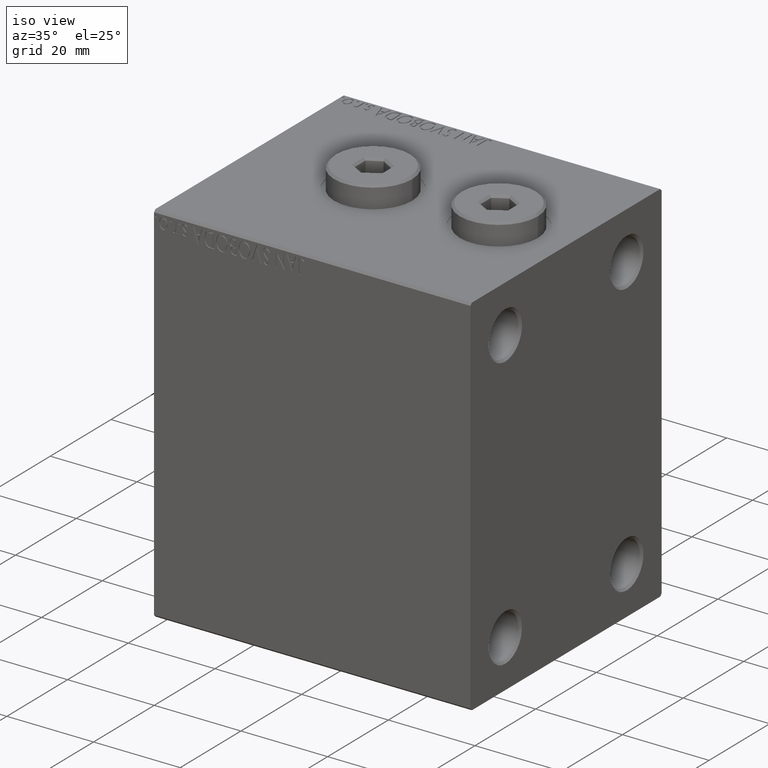
[diagram: clean part render]
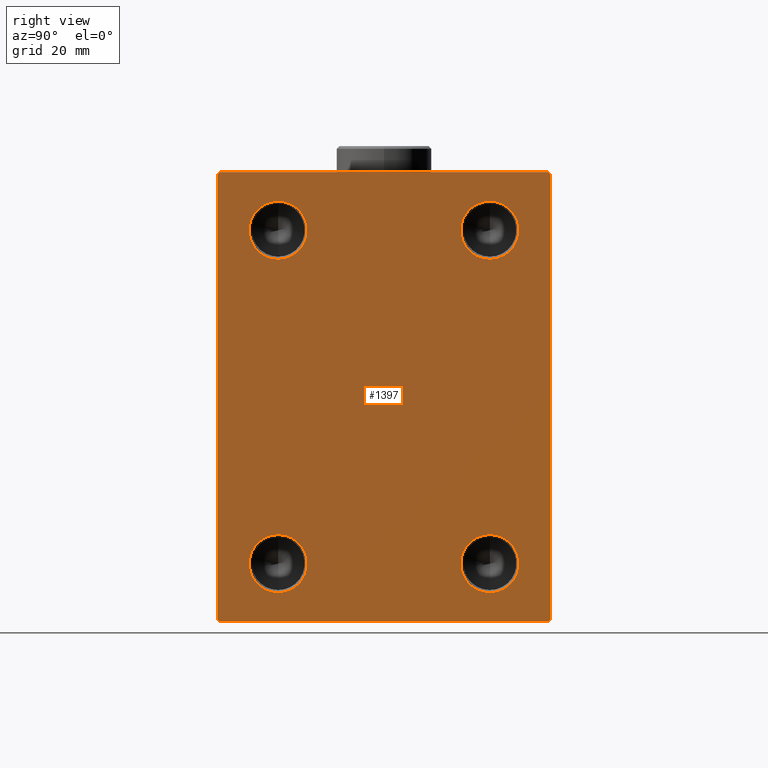
[diagram: tour spotlight — one face highlighted and labeled with its STEP entity id]
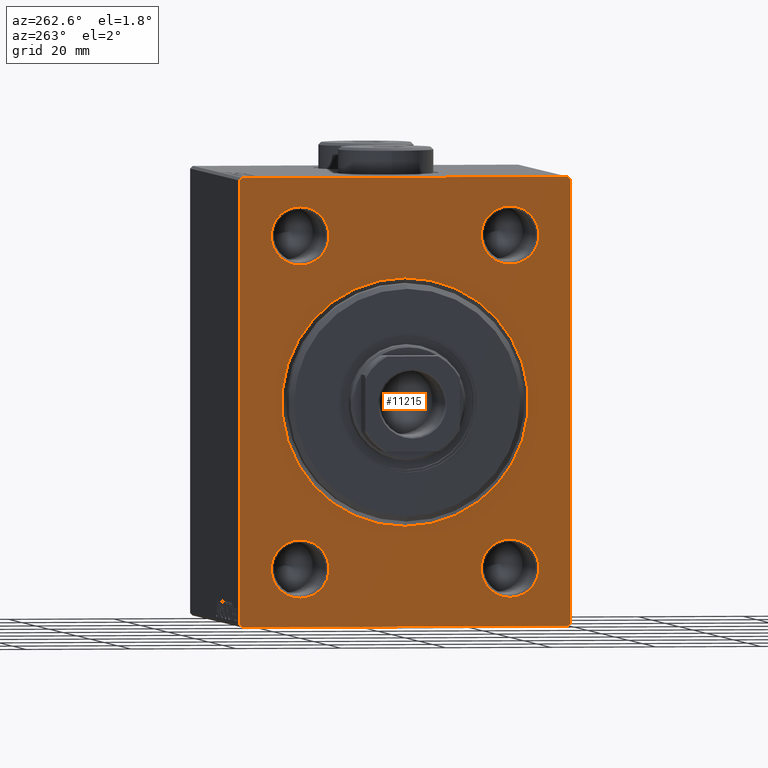
[diagram: tour spotlight — one face highlighted and labeled with its STEP entity id]
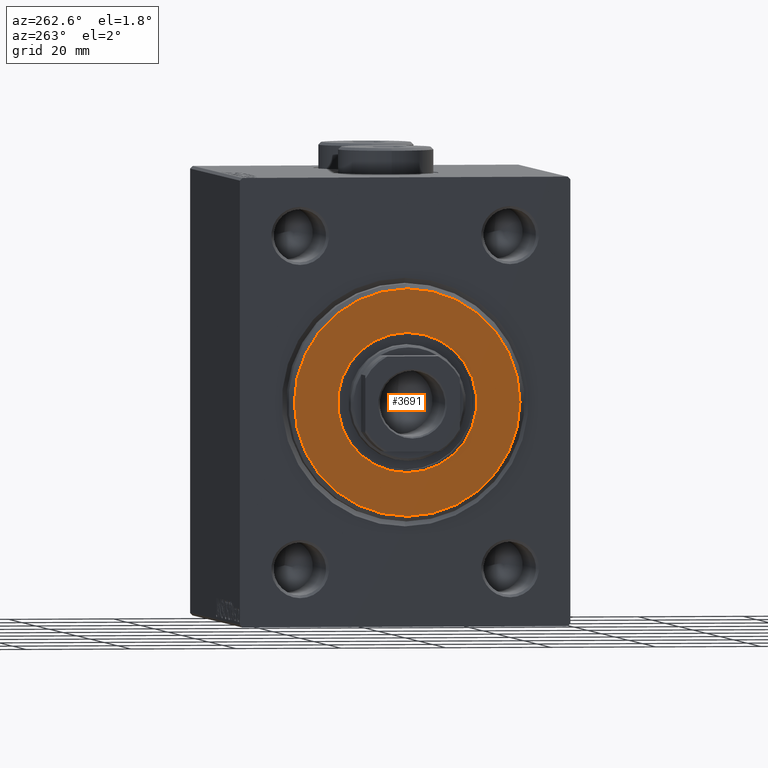
[diagram: tour spotlight — one face highlighted and labeled with its STEP entity id]
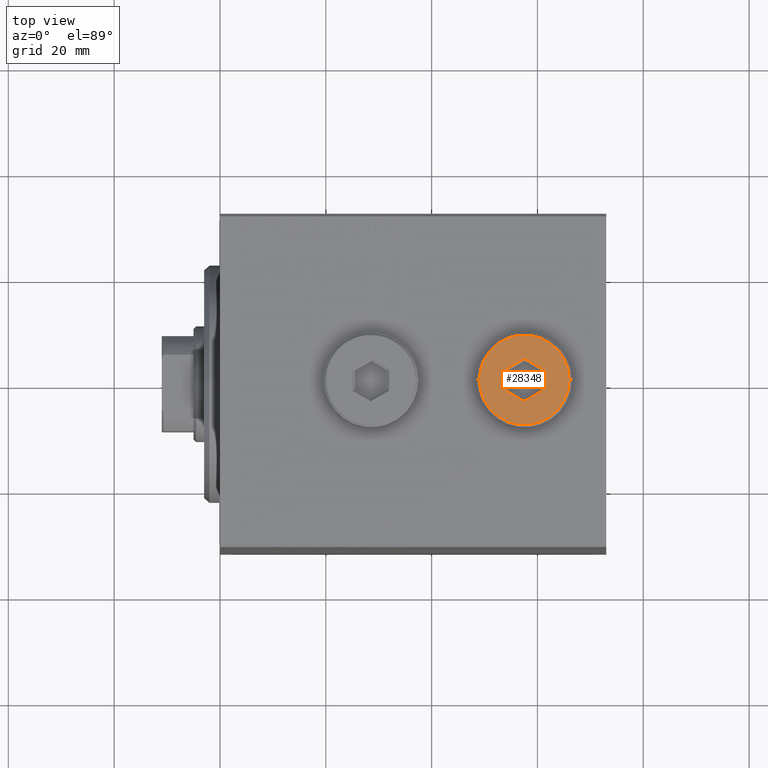
[diagram: tour spotlight — one face highlighted and labeled with its STEP entity id]
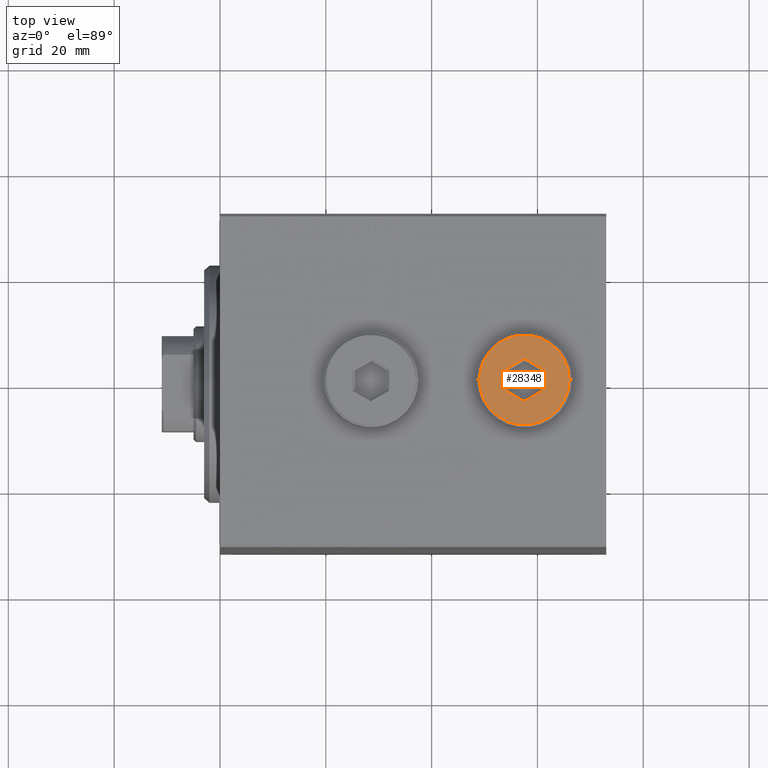
[diagram: tour spotlight — one face highlighted and labeled with its STEP entity id]
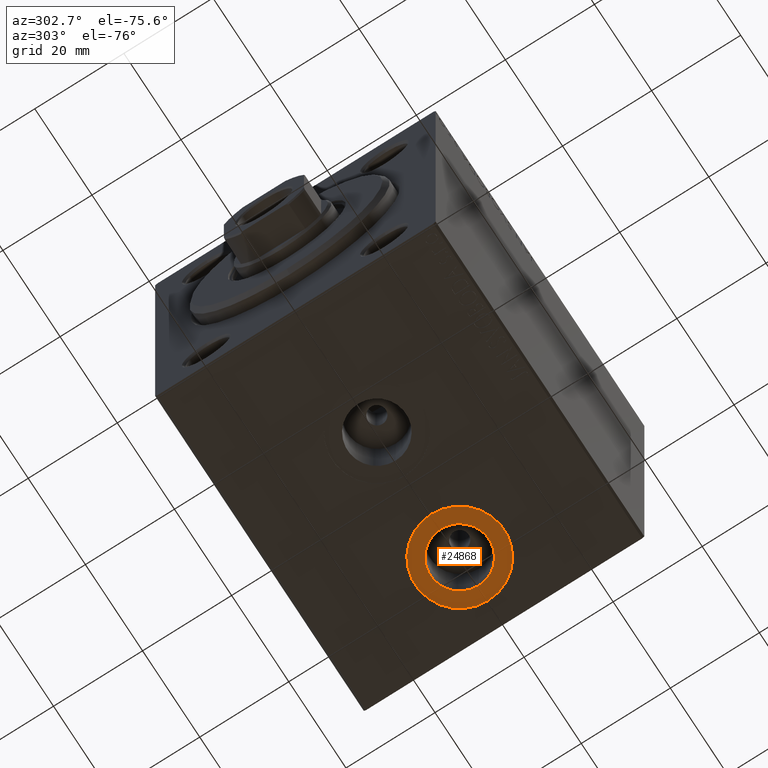
[diagram: tour spotlight — one face highlighted and labeled with its STEP entity id]
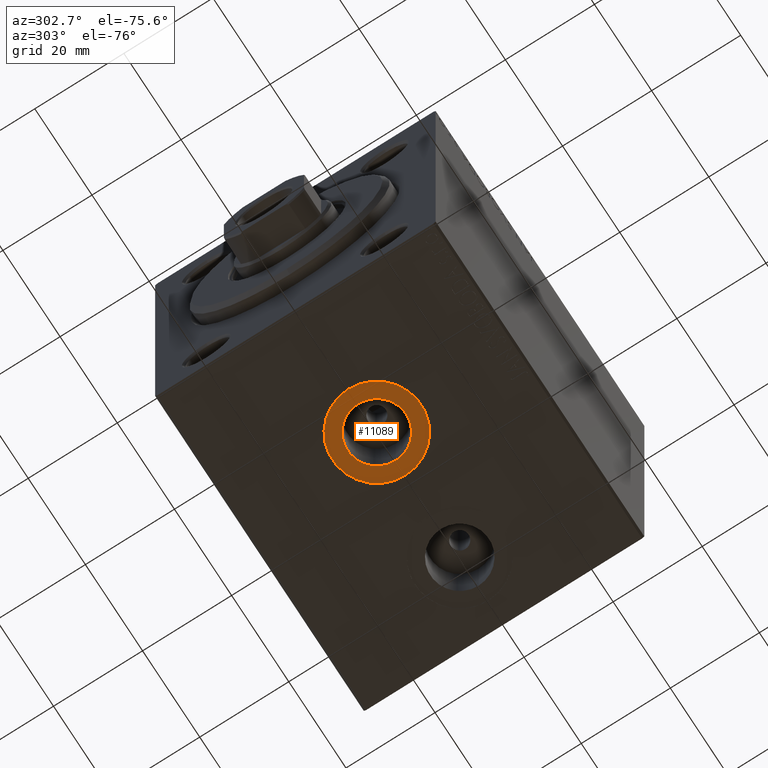
[diagram: tour spotlight — one face highlighted and labeled with its STEP entity id]
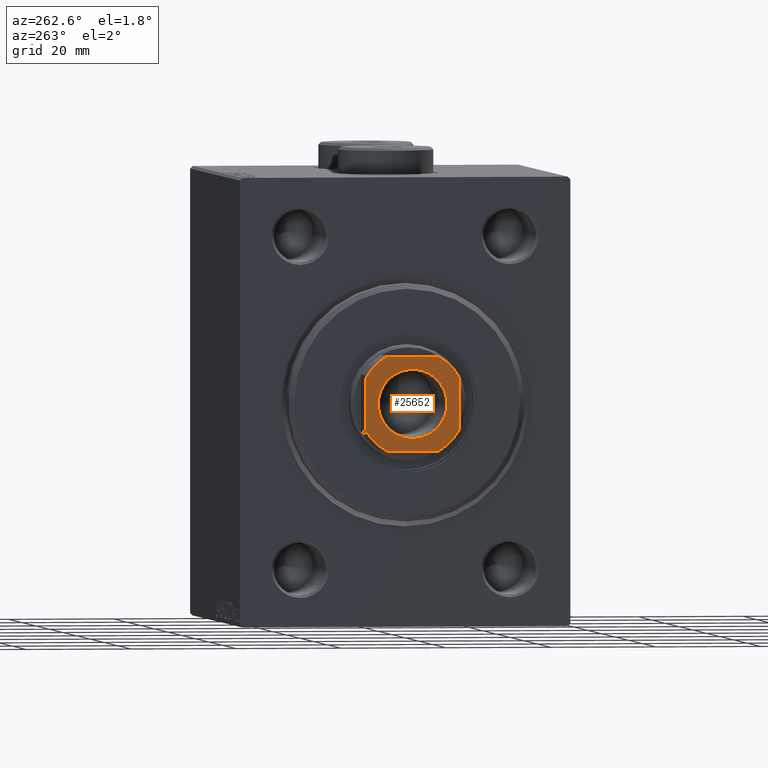
[diagram: tour spotlight — one face highlighted and labeled with its STEP entity id]
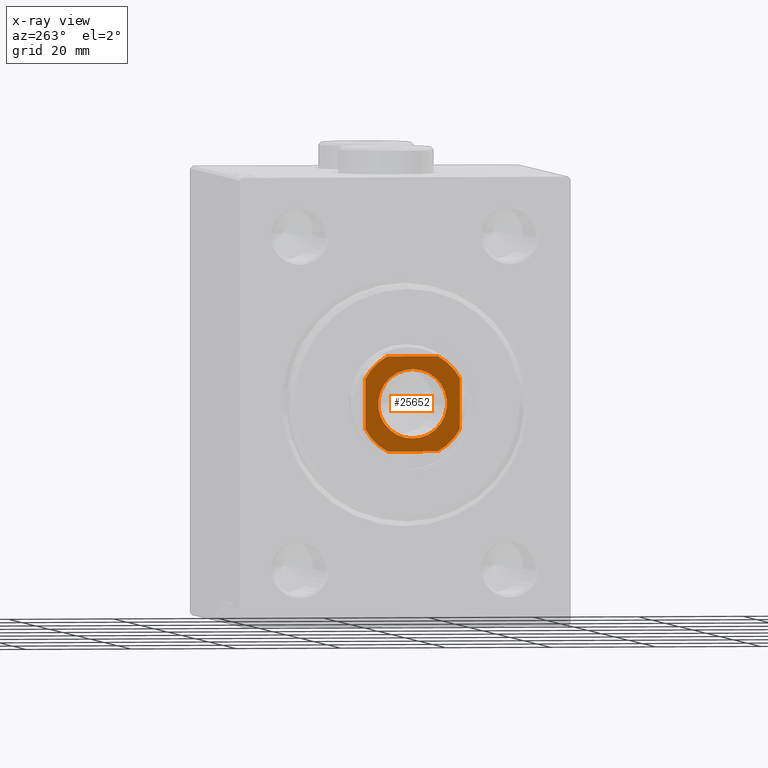
[diagram: x-ray of the same camera — body ghosted, this tour face saturated]
A machine part: a face-by-face anatomy tour. The part has 933 B-rep faces; the first image is the clean iso view, then the 8 largest visible faces are spotlighted one at a time (largest first), each with its STEP entity span.

Face 1 — right view, entity #1397. In plain terms, the highlighted planar face has unit normal (1, 0, 0).
Definition (entity closure, byte-faithful):
#661 = CARTESIAN_POINT ( 'NONE',  ( 73.00000000000000000, -31.00000000000000000, 42.49999999999998579 ) ) ;
#853 = VERTEX_POINT ( 'NONE', #21085 ) ;
#1088 = DIRECTION ( 'NONE',  ( 0.000000000000000000, 0.000000000000000000, -1.000000000000000000 ) ) ;
#1397 = ADVANCED_FACE ( 'NONE', ( #15728, #19633, #19855, #5620, #13177 ), #33646, .T. ) ;
#1671 = VECTOR ( 'NONE', #24778, 1000.000000000000000 ) ;
#2185 = CARTESIAN_POINT ( 'NONE',  ( 73.00000000000000000, 0.000000000000000000, 0.000000000000000000 ) ) ;
#2287 = AXIS2_PLACEMENT_3D ( 'NONE', #39627, #8155, #22188 ) ;
#2638 = DIRECTION ( 'NONE',  ( 1.000000000000000000, 0.000000000000000000, 0.000000000000000000 ) ) ;
#2842 = CIRCLE ( 'NONE', #26336, 5.500000000000005329 ) ;
#2970 = LINE ( 'NONE', #38556, #1671 ) ;
#3181 = CARTESIAN_POINT ( 'NONE',  ( 73.00000000000000000, 19.99999999999999645, -25.99999999999999289 ) ) ;
#3385 = CARTESIAN_POINT ( 'NONE',  ( 73.00000000000000000, -31.50000000000000000, -42.00000000000000000 ) ) ;
#3513 = VECTOR ( 'NONE', #24123, 1000.000000000000114 ) ;
#3574 = ORIENTED_EDGE ( 'NONE', *, *, #45396, .F. ) ;
#3575 = CARTESIAN_POINT ( 'NONE',  ( 73.00000000000000000, -31.50000000000000000, -42.50000000000000711 ) ) ;
#3648 = EDGE_LOOP ( 'NONE', ( #39187, #21361, #44512, #26141, #8186, #27920, #43336, #11939 ) ) ;
#3658 = CARTESIAN_POINT ( 'NONE',  ( 73.00000000000000000, -36.75000000000022737, -36.74999999999971578 ) ) ;
#4088 = CARTESIAN_POINT ( 'NONE',  ( 73.00000000000000000, 31.50000000000000000, 41.99999999999999289 ) ) ;
#4105 = EDGE_CURVE ( 'NONE', #20127, #853, #38049, .T. ) ;
#4116 = EDGE_LOOP ( 'NONE', ( #33742, #8873 ) ) ;
#4854 = DIRECTION ( 'NONE',  ( 0.000000000000000000, 0.000000000000000000, -1.000000000000000000 ) ) ;
#5240 = VERTEX_POINT ( 'NONE', #12651 ) ;
#5613 = VERTEX_POINT ( 'NONE', #6166 ) ;
#5620 = FACE_BOUND ( 'NONE', #25158, .T. ) ;
#5937 = EDGE_CURVE ( 'NONE', #16228, #41867, #10005, .T. ) ;
#6075 = VECTOR ( 'NONE', #17213, 1000.000000000000114 ) ;
#6086 = EDGE_CURVE ( 'NONE', #35880, #10339, #20963, .T. ) ;
#6166 = CARTESIAN_POINT ( 'NONE',  ( 73.00000000000000000, -20.00000000000000355, 25.99999999999999289 ) ) ;
#6562 = VERTEX_POINT ( 'NONE', #3181 ) ;
#6586 = DIRECTION ( 'NONE',  ( 1.000000000000000000, -0.000000000000000000, -0.000000000000000000 ) ) ;
#7754 = CARTESIAN_POINT ( 'NONE',  ( 73.00000000000000000, 31.00000000000000000, 42.49999999999999289 ) ) ;
#8155 = DIRECTION ( 'NONE',  ( 1.000000000000000000, -0.000000000000000000, -0.000000000000000000 ) ) ;
#8186 = ORIENTED_EDGE ( 'NONE', *, *, #4105, .T. ) ;
#8873 = ORIENTED_EDGE ( 'NONE', *, *, #16430, .F. ) ;
#9613 = CIRCLE ( 'NONE', #2287, 5.500000000000005329 ) ;
#9942 = DIRECTION ( 'NONE',  ( 0.000000000000000000, 0.000000000000000000, -1.000000000000000000 ) ) ;
#10005 = CIRCLE ( 'NONE', #35679, 5.500000000000005329 ) ;
#10339 = VERTEX_POINT ( 'NONE', #3385 ) ;
#10959 = ORIENTED_EDGE ( 'NONE', *, *, #41266, .F. ) ;
#11217 = DIRECTION ( 'NONE',  ( -0.000000000000000000, 0.7071067811865425767, -0.7071067811865525687 ) ) ;
#11323 = VECTOR ( 'NONE', #36474, 1000.000000000000114 ) ;
#11939 = ORIENTED_EDGE ( 'NONE', *, *, #26348, .T. ) ;
#12651 = CARTESIAN_POINT ( 'NONE',  ( 73.00000000000000000, 31.50000000000001421, -42.00000000000000711 ) ) ;
#12667 = AXIS2_PLACEMENT_3D ( 'NONE', #31633, #20856, #28207 ) ;
#12761 = AXIS2_PLACEMENT_3D ( 'NONE', #29962, #22836, #19150 ) ;
#13175 = CARTESIAN_POINT ( 'NONE',  ( 73.00000000000000000, 31.50000000000001421, -42.50000000000000711 ) ) ;
#13177 = FACE_OUTER_BOUND ( 'NONE', #3648, .T. ) ;
#13463 = EDGE_CURVE ( 'NONE', #37028, #35880, #41783, .T. ) ;
#13835 = DIRECTION ( 'NONE',  ( 1.000000000000000000, -0.000000000000000000, -0.000000000000000000 ) ) ;
#14877 = VECTOR ( 'NONE', #19631, 1000.000000000000000 ) ;
#15163 = EDGE_CURVE ( 'NONE', #40238, #6562, #2842, .T. ) ;
#15183 = DIRECTION ( 'NONE',  ( 0.000000000000000000, 0.000000000000000000, -1.000000000000000000 ) ) ;
#15728 = FACE_BOUND ( 'NONE', #37211, .T. ) ;
#16228 = VERTEX_POINT ( 'NONE', #26768 ) ;
#16430 = EDGE_CURVE ( 'NONE', #5613, #24072, #35152, .T. ) ;
#17213 = DIRECTION ( 'NONE',  ( -0.000000000000000000, -0.7071067811865474617, 0.7071067811865474617 ) ) ;
#17389 = DIRECTION ( 'NONE',  ( 0.000000000000000000, 0.000000000000000000, -1.000000000000000000 ) ) ;
#18174 = DIRECTION ( 'NONE',  ( 1.000000000000000000, -0.000000000000000000, -0.000000000000000000 ) ) ;
#18524 = DIRECTION ( 'NONE',  ( 1.000000000000000000, -0.000000000000000000, -0.000000000000000000 ) ) ;
#18641 = DIRECTION ( 'NONE',  ( 1.000000000000000000, -0.000000000000000000, -0.000000000000000000 ) ) ;
#19150 = DIRECTION ( 'NONE',  ( 0.000000000000000000, 0.000000000000000000, -1.000000000000000000 ) ) ;
#19346 = CARTESIAN_POINT ( 'NONE',  ( 73.00000000000000000, -20.00000000000000355, 31.50000000000000000 ) ) ;
#19508 = VERTEX_POINT ( 'NONE', #31712 ) ;
#19631 = DIRECTION ( 'NONE',  ( 0.000000000000000000, -1.632680918566406547E-16, 1.000000000000000000 ) ) ;
#19633 = FACE_BOUND ( 'NONE', #4116, .T. ) ;
#19855 = FACE_BOUND ( 'NONE', #31738, .T. ) ;
#20127 = VERTEX_POINT ( 'NONE', #26502 ) ;
#20227 = LINE ( 'NONE', #35120, #6075 ) ;
#20856 = DIRECTION ( 'NONE',  ( 1.000000000000000000, -0.000000000000000000, -0.000000000000000000 ) ) ;
#20963 = LINE ( 'NONE', #34968, #30596 ) ;
#21085 = CARTESIAN_POINT ( 'NONE',  ( 73.00000000000000000, 31.00000000000001421, -42.50000000000000711 ) ) ;
#21361 = ORIENTED_EDGE ( 'NONE', *, *, #13463, .T. ) ;
#21685 = EDGE_CURVE ( 'NONE', #41867, #16228, #9613, .T. ) ;
#22188 = DIRECTION ( 'NONE',  ( 0.000000000000000000, 0.000000000000000000, -1.000000000000000000 ) ) ;
#22701 = LINE ( 'NONE', #43600, #11323 ) ;
#22788 = AXIS2_PLACEMENT_3D ( 'NONE', #38072, #6586, #17389 ) ;
#22836 = DIRECTION ( 'NONE',  ( 1.000000000000000000, -0.000000000000000000, -0.000000000000000000 ) ) ;
#22949 = CIRCLE ( 'NONE', #12667, 5.500000000000005329 ) ;
#23136 = ORIENTED_EDGE ( 'NONE', *, *, #5937, .F. ) ;
#23311 = LINE ( 'NONE', #13175, #14877 ) ;
#23427 = VERTEX_POINT ( 'NONE', #7754 ) ;
#24072 = VERTEX_POINT ( 'NONE', #37053 ) ;
#24123 = DIRECTION ( 'NONE',  ( 0.000000000000000000, -0.7071067811865474617, -0.7071067811865474617 ) ) ;
#24778 = DIRECTION ( 'NONE',  ( 0.000000000000000000, -1.000000000000000000, -1.101411730778925171E-16 ) ) ;
#25158 = EDGE_LOOP ( 'NONE', ( #3574, #34630 ) ) ;
#25367 = ORIENTED_EDGE ( 'NONE', *, *, #21685, .F. ) ;
#26141 = ORIENTED_EDGE ( 'NONE', *, *, #27796, .T. ) ;
#26320 = DIRECTION ( 'NONE',  ( 0.000000000000000000, 0.000000000000000000, -1.000000000000000000 ) ) ;
#26336 = AXIS2_PLACEMENT_3D ( 'NONE', #29213, #18174, #15183 ) ;
#26348 = EDGE_CURVE ( 'NONE', #30710, #23427, #20227, .T. ) ;
#26502 = CARTESIAN_POINT ( 'NONE',  ( 73.00000000000000000, -31.00000000000000000, -42.50000000000000711 ) ) ;
#26768 = CARTESIAN_POINT ( 'NONE',  ( 73.00000000000000000, 19.99999999999999645, 25.99999999999999289 ) ) ;
#27409 = VECTOR ( 'NONE', #11217, 999.9999999999998863 ) ;
#27552 = AXIS2_PLACEMENT_3D ( 'NONE', #2185, #2638, #26320 ) ;
#27796 = EDGE_CURVE ( 'NONE', #10339, #20127, #31467, .T. ) ;
#27920 = ORIENTED_EDGE ( 'NONE', *, *, #45445, .T. ) ;
#28086 = CIRCLE ( 'NONE', #42001, 5.500000000000005329 ) ;
#28207 = DIRECTION ( 'NONE',  ( 0.000000000000000000, 0.000000000000000000, -1.000000000000000000 ) ) ;
#28822 = ORIENTED_EDGE ( 'NONE', *, *, #31663, .F. ) ;
#29213 = CARTESIAN_POINT ( 'NONE',  ( 73.00000000000000000, 19.99999999999999645, -31.50000000000000000 ) ) ;
#29802 = VERTEX_POINT ( 'NONE', #45233 ) ;
#29962 = CARTESIAN_POINT ( 'NONE',  ( 73.00000000000000000, 19.99999999999999645, -31.50000000000000000 ) ) ;
#30596 = VECTOR ( 'NONE', #34750, 1000.000000000000000 ) ;
#30710 = VERTEX_POINT ( 'NONE', #4088 ) ;
#31467 = LINE ( 'NONE', #3658, #27409 ) ;
#31528 = CARTESIAN_POINT ( 'NONE',  ( 73.00000000000000000, 19.99999999999999645, 31.50000000000000000 ) ) ;
#31633 = CARTESIAN_POINT ( 'NONE',  ( 73.00000000000000000, -20.00000000000000355, -31.50000000000000000 ) ) ;
#31663 = EDGE_CURVE ( 'NONE', #19508, #29802, #44796, .T. ) ;
#31712 = CARTESIAN_POINT ( 'NONE',  ( 73.00000000000000000, -20.00000000000000355, -25.99999999999999289 ) ) ;
#31738 = EDGE_LOOP ( 'NONE', ( #28822, #10959 ) ) ;
#32191 = AXIS2_PLACEMENT_3D ( 'NONE', #19346, #18641, #4854 ) ;
#32577 = CIRCLE ( 'NONE', #12761, 5.500000000000005329 ) ;
#33646 = PLANE ( 'NONE',  #27552 ) ;
#33742 = ORIENTED_EDGE ( 'NONE', *, *, #41348, .F. ) ;
#34630 = ORIENTED_EDGE ( 'NONE', *, *, #15163, .F. ) ;
#34750 = DIRECTION ( 'NONE',  ( 0.000000000000000000, 0.000000000000000000, -1.000000000000000000 ) ) ;
#34968 = CARTESIAN_POINT ( 'NONE',  ( 73.00000000000000000, -31.50000000000000000, 42.49999999999998579 ) ) ;
#35120 = CARTESIAN_POINT ( 'NONE',  ( 73.00000000000000000, 36.75000000000000000, 36.75000000000000000 ) ) ;
#35152 = CIRCLE ( 'NONE', #32191, 5.500000000000005329 ) ;
#35679 = AXIS2_PLACEMENT_3D ( 'NONE', #31528, #13835, #9942 ) ;
#35880 = VERTEX_POINT ( 'NONE', #37935 ) ;
#36474 = DIRECTION ( 'NONE',  ( -0.000000000000000000, 0.7071067811865474617, 0.7071067811865474617 ) ) ;
#37028 = VERTEX_POINT ( 'NONE', #661 ) ;
#37053 = CARTESIAN_POINT ( 'NONE',  ( 73.00000000000000000, -20.00000000000000355, 37.00000000000000711 ) ) ;
#37211 = EDGE_LOOP ( 'NONE', ( #25367, #23136 ) ) ;
#37935 = CARTESIAN_POINT ( 'NONE',  ( 73.00000000000000000, -31.50000000000000000, 41.99999999999998579 ) ) ;
#38049 = LINE ( 'NONE', #3575, #45191 ) ;
#38072 = CARTESIAN_POINT ( 'NONE',  ( 73.00000000000000000, -20.00000000000000355, -31.50000000000000000 ) ) ;
#38124 = CARTESIAN_POINT ( 'NONE',  ( 73.00000000000000000, -36.74999999999999289, 36.74999999999999289 ) ) ;
#38556 = CARTESIAN_POINT ( 'NONE',  ( 73.00000000000000000, 31.50000000000000000, 42.49999999999999289 ) ) ;
#39187 = ORIENTED_EDGE ( 'NONE', *, *, #39530, .T. ) ;
#39530 = EDGE_CURVE ( 'NONE', #23427, #37028, #2970, .T. ) ;
#39627 = CARTESIAN_POINT ( 'NONE',  ( 73.00000000000000000, 19.99999999999999645, 31.50000000000000000 ) ) ;
#40125 = CARTESIAN_POINT ( 'NONE',  ( 73.00000000000000000, -20.00000000000000355, 31.50000000000000000 ) ) ;
#40238 = VERTEX_POINT ( 'NONE', #41078 ) ;
#41078 = CARTESIAN_POINT ( 'NONE',  ( 73.00000000000000000, 19.99999999999999645, -37.00000000000000711 ) ) ;
#41266 = EDGE_CURVE ( 'NONE', #29802, #19508, #22949, .T. ) ;
#41348 = EDGE_CURVE ( 'NONE', #24072, #5613, #28086, .T. ) ;
#41783 = LINE ( 'NONE', #38124, #3513 ) ;
#41867 = VERTEX_POINT ( 'NONE', #44148 ) ;
#42001 = AXIS2_PLACEMENT_3D ( 'NONE', #40125, #18524, #1088 ) ;
#42430 = EDGE_CURVE ( 'NONE', #5240, #30710, #23311, .T. ) ;
#43336 = ORIENTED_EDGE ( 'NONE', *, *, #42430, .T. ) ;
#43600 = CARTESIAN_POINT ( 'NONE',  ( 73.00000000000000000, 36.75000000000001421, -36.75000000000001421 ) ) ;
#44148 = CARTESIAN_POINT ( 'NONE',  ( 73.00000000000000000, 19.99999999999999645, 37.00000000000000711 ) ) ;
#44334 = DIRECTION ( 'NONE',  ( 0.000000000000000000, 1.000000000000000000, 0.000000000000000000 ) ) ;
#44512 = ORIENTED_EDGE ( 'NONE', *, *, #6086, .T. ) ;
#44796 = CIRCLE ( 'NONE', #22788, 5.500000000000005329 ) ;
#45191 = VECTOR ( 'NONE', #44334, 1000.000000000000000 ) ;
#45233 = CARTESIAN_POINT ( 'NONE',  ( 73.00000000000000000, -20.00000000000000355, -37.00000000000000711 ) ) ;
#45396 = EDGE_CURVE ( 'NONE', #6562, #40238, #32577, .T. ) ;
#45445 = EDGE_CURVE ( 'NONE', #853, #5240, #22701, .T. ) ;

Face 2 — auxiliary view, entity #11215. In plain terms, the highlighted planar face has unit normal (1, 0, 0).
Definition (entity closure, byte-faithful):
#181 = CARTESIAN_POINT ( 'NONE',  ( 0.000000000000000000, 31.50000000000001421, -42.00000000000000711 ) ) ;
#214 = CARTESIAN_POINT ( 'NONE',  ( 0.000000000000000000, -20.00000000000000355, 31.50000000000000000 ) ) ;
#975 = VERTEX_POINT ( 'NONE', #4512 ) ;
#1328 = VERTEX_POINT ( 'NONE', #37540 ) ;
#2555 = DIRECTION ( 'NONE',  ( 0.000000000000000000, 0.000000000000000000, -1.000000000000000000 ) ) ;
#2721 = FACE_BOUND ( 'NONE', #43966, .T. ) ;
#3021 = EDGE_LOOP ( 'NONE', ( #11458, #44328 ) ) ;
#3067 = VECTOR ( 'NONE', #41382, 1000.000000000000114 ) ;
#3098 = EDGE_CURVE ( 'NONE', #24919, #43735, #19503, .T. ) ;
#3117 = DIRECTION ( 'NONE',  ( 0.000000000000000000, 0.000000000000000000, -1.000000000000000000 ) ) ;
#3126 = CIRCLE ( 'NONE', #44956, 5.500000000000005329 ) ;
#3826 = CIRCLE ( 'NONE', #29537, 23.50000000000003197 ) ;
#3944 = EDGE_CURVE ( 'NONE', #5328, #35106, #23930, .T. ) ;
#4191 = DIRECTION ( 'NONE',  ( 0.000000000000000000, 0.000000000000000000, -1.000000000000000000 ) ) ;
#4512 = CARTESIAN_POINT ( 'NONE',  ( 0.000000000000000000, -31.50000000000000000, -42.00000000000000000 ) ) ;
#4956 = VERTEX_POINT ( 'NONE', #29963 ) ;
#5328 = VERTEX_POINT ( 'NONE', #42464 ) ;
#5430 = ORIENTED_EDGE ( 'NONE', *, *, #3944, .T. ) ;
#5790 = CARTESIAN_POINT ( 'NONE',  ( 0.000000000000000000, 31.50000000000001421, -42.00000000000000711 ) ) ;
#5931 = FACE_OUTER_BOUND ( 'NONE', #35980, .T. ) ;
#5959 = VECTOR ( 'NONE', #43272, 1000.000000000000114 ) ;
#6115 = CARTESIAN_POINT ( 'NONE',  ( 0.000000000000000000, -31.00000000000000000, -42.50000000000000711 ) ) ;
#6410 = CARTESIAN_POINT ( 'NONE',  ( 0.000000000000000000, 0.000000000000000000, 0.000000000000000000 ) ) ;
#6910 = EDGE_CURVE ( 'NONE', #35106, #5328, #7819, .T. ) ;
#6929 = DIRECTION ( 'NONE',  ( 0.000000000000000000, 1.000000000000000000, 0.000000000000000000 ) ) ;
#7142 = CARTESIAN_POINT ( 'NONE',  ( 0.000000000000000000, 19.99999999999999645, -37.00000000000000711 ) ) ;
#7653 = LINE ( 'NONE', #10871, #5959 ) ;
#7819 = CIRCLE ( 'NONE', #38670, 5.500000000000005329 ) ;
#8413 = EDGE_CURVE ( 'NONE', #38853, #975, #38034, .T. ) ;
#8761 = AXIS2_PLACEMENT_3D ( 'NONE', #32453, #21889, #4191 ) ;
#8975 = AXIS2_PLACEMENT_3D ( 'NONE', #26208, #28944, #14908 ) ;
#9469 = LINE ( 'NONE', #5790, #3067 ) ;
#10302 = DIRECTION ( 'NONE',  ( 1.000000000000000000, 0.000000000000000000, 0.000000000000000000 ) ) ;
#10871 = CARTESIAN_POINT ( 'NONE',  ( 0.000000000000000000, -31.50000000000000000, 41.99999999999998579 ) ) ;
#11171 = VECTOR ( 'NONE', #6929, 1000.000000000000000 ) ;
#11215 = ADVANCED_FACE ( 'NONE', ( #2721, #23400, #44303, #41297, #37408, #5931 ), #30310, .F. ) ;
#11306 = CARTESIAN_POINT ( 'NONE',  ( 0.000000000000000000, 0.000000000000000000, 23.50000000000003197 ) ) ;
#11458 = ORIENTED_EDGE ( 'NONE', *, *, #25752, .T. ) ;
#12197 = VERTEX_POINT ( 'NONE', #16998 ) ;
#12320 = EDGE_CURVE ( 'NONE', #39335, #975, #20570, .T. ) ;
#13060 = VECTOR ( 'NONE', #27494, 999.9999999999998863 ) ;
#13758 = DIRECTION ( 'NONE',  ( 1.000000000000000000, 0.000000000000000000, 0.000000000000000000 ) ) ;
#14182 = VERTEX_POINT ( 'NONE', #7142 ) ;
#14376 = EDGE_CURVE ( 'NONE', #43735, #24919, #29196, .T. ) ;
#14391 = EDGE_LOOP ( 'NONE', ( #39980, #16675 ) ) ;
#14522 = CARTESIAN_POINT ( 'NONE',  ( 0.000000000000000000, 31.50000000000000000, 42.49999999999999289 ) ) ;
#14739 = DIRECTION ( 'NONE',  ( 0.000000000000000000, -1.000000000000000000, -1.101411730778925171E-16 ) ) ;
#14908 = DIRECTION ( 'NONE',  ( 0.000000000000000000, 0.000000000000000000, -1.000000000000000000 ) ) ;
#15174 = LINE ( 'NONE', #22548, #34603 ) ;
#15212 = CARTESIAN_POINT ( 'NONE',  ( 0.000000000000000000, 0.000000000000000000, 0.000000000000000000 ) ) ;
#16611 = LINE ( 'NONE', #31304, #11171 ) ;
#16675 = ORIENTED_EDGE ( 'NONE', *, *, #3098, .T. ) ;
#16755 = DIRECTION ( 'NONE',  ( 0.000000000000000000, 0.000000000000000000, -1.000000000000000000 ) ) ;
#16998 = CARTESIAN_POINT ( 'NONE',  ( 0.000000000000000000, 2.877919977996283870E-15, -23.50000000000003197 ) ) ;
#17518 = CARTESIAN_POINT ( 'NONE',  ( 0.000000000000000000, 19.99999999999999645, 31.50000000000000000 ) ) ;
#18041 = AXIS2_PLACEMENT_3D ( 'NONE', #31045, #40716, #23927 ) ;
#18316 = EDGE_CURVE ( 'NONE', #32207, #14182, #21245, .T. ) ;
#18415 = VERTEX_POINT ( 'NONE', #11306 ) ;
#19050 = EDGE_CURVE ( 'NONE', #28047, #32198, #24437, .T. ) ;
#19503 = CIRCLE ( 'NONE', #37835, 5.500000000000005329 ) ;
#19963 = EDGE_CURVE ( 'NONE', #12197, #18415, #38172, .T. ) ;
#20184 = ORIENTED_EDGE ( 'NONE', *, *, #23941, .T. ) ;
#20187 = CARTESIAN_POINT ( 'NONE',  ( 0.000000000000000000, 31.00000000000001421, -42.50000000000000711 ) ) ;
#20353 = CARTESIAN_POINT ( 'NONE',  ( 0.000000000000000000, 31.00000000000000000, 42.49999999999999289 ) ) ;
#20386 = DIRECTION ( 'NONE',  ( 0.000000000000000000, 0.000000000000000000, -1.000000000000000000 ) ) ;
#20570 = LINE ( 'NONE', #34580, #38055 ) ;
#20610 = EDGE_LOOP ( 'NONE', ( #5430, #34928 ) ) ;
#20760 = DIRECTION ( 'NONE',  ( 0.000000000000000000, -1.632680918566406547E-16, 1.000000000000000000 ) ) ;
#21245 = CIRCLE ( 'NONE', #8761, 5.500000000000005329 ) ;
#21438 = EDGE_CURVE ( 'NONE', #38752, #1328, #22070, .T. ) ;
#21525 = ORIENTED_EDGE ( 'NONE', *, *, #25385, .T. ) ;
#21889 = DIRECTION ( 'NONE',  ( 1.000000000000000000, 0.000000000000000000, 0.000000000000000000 ) ) ;
#22070 = CIRCLE ( 'NONE', #25757, 5.500000000000005329 ) ;
#22548 = CARTESIAN_POINT ( 'NONE',  ( 0.000000000000000000, 31.00000000000000000, 42.49999999999999289 ) ) ;
#23400 = FACE_BOUND ( 'NONE', #20610, .T. ) ;
#23623 = DIRECTION ( 'NONE',  ( 0.000000000000000000, 0.000000000000000000, -1.000000000000000000 ) ) ;
#23802 = ORIENTED_EDGE ( 'NONE', *, *, #32067, .T. ) ;
#23927 = DIRECTION ( 'NONE',  ( 0.000000000000000000, 0.000000000000000000, -1.000000000000000000 ) ) ;
#23930 = CIRCLE ( 'NONE', #18041, 5.500000000000005329 ) ;
#23941 = EDGE_CURVE ( 'NONE', #29286, #32198, #15174, .T. ) ;
#24437 = LINE ( 'NONE', #41868, #39607 ) ;
#24648 = DIRECTION ( 'NONE',  ( 0.000000000000000000, 0.000000000000000000, -1.000000000000000000 ) ) ;
#24738 = ORIENTED_EDGE ( 'NONE', *, *, #39116, .T. ) ;
#24919 = VERTEX_POINT ( 'NONE', #43720 ) ;
#25385 = EDGE_CURVE ( 'NONE', #18415, #12197, #3826, .T. ) ;
#25752 = EDGE_CURVE ( 'NONE', #1328, #38752, #3126, .T. ) ;
#25757 = AXIS2_PLACEMENT_3D ( 'NONE', #214, #10302, #42221 ) ;
#26208 = CARTESIAN_POINT ( 'NONE',  ( 0.000000000000000000, 19.99999999999999645, -31.50000000000000000 ) ) ;
#26572 = CARTESIAN_POINT ( 'NONE',  ( 0.000000000000000000, 19.99999999999999645, 37.00000000000000711 ) ) ;
#27021 = EDGE_CURVE ( 'NONE', #29286, #4956, #32451, .T. ) ;
#27365 = DIRECTION ( 'NONE',  ( 1.000000000000000000, 0.000000000000000000, 0.000000000000000000 ) ) ;
#27494 = DIRECTION ( 'NONE',  ( -0.000000000000000000, -0.7071067811865425767, 0.7071067811865525687 ) ) ;
#27633 = ORIENTED_EDGE ( 'NONE', *, *, #18316, .T. ) ;
#28047 = VERTEX_POINT ( 'NONE', #181 ) ;
#28718 = ORIENTED_EDGE ( 'NONE', *, *, #35328, .T. ) ;
#28944 = DIRECTION ( 'NONE',  ( 1.000000000000000000, 0.000000000000000000, 0.000000000000000000 ) ) ;
#29196 = CIRCLE ( 'NONE', #30684, 5.500000000000005329 ) ;
#29286 = VERTEX_POINT ( 'NONE', #20353 ) ;
#29435 = DIRECTION ( 'NONE',  ( -0.000000000000000000, 0.7071067811865474617, -0.7071067811865474617 ) ) ;
#29537 = AXIS2_PLACEMENT_3D ( 'NONE', #6410, #13758, #16755 ) ;
#29963 = CARTESIAN_POINT ( 'NONE',  ( 0.000000000000000000, -31.00000000000000000, 42.49999999999998579 ) ) ;
#30310 = PLANE ( 'NONE',  #42427 ) ;
#30420 = CARTESIAN_POINT ( 'NONE',  ( 0.000000000000000000, 19.99999999999999645, -25.99999999999999645 ) ) ;
#30517 = DIRECTION ( 'NONE',  ( 1.000000000000000000, 0.000000000000000000, 0.000000000000000000 ) ) ;
#30559 = CARTESIAN_POINT ( 'NONE',  ( 0.000000000000000000, -31.50000000000000000, 41.99999999999998579 ) ) ;
#30684 = AXIS2_PLACEMENT_3D ( 'NONE', #45240, #27365, #2555 ) ;
#31045 = CARTESIAN_POINT ( 'NONE',  ( 0.000000000000000000, -20.00000000000000355, -31.50000000000000000 ) ) ;
#31063 = VECTOR ( 'NONE', #14739, 1000.000000000000000 ) ;
#31194 = DIRECTION ( 'NONE',  ( 1.000000000000000000, 0.000000000000000000, 0.000000000000000000 ) ) ;
#31304 = CARTESIAN_POINT ( 'NONE',  ( 0.000000000000000000, -31.50000000000000000, -42.50000000000000711 ) ) ;
#31999 = DIRECTION ( 'NONE',  ( 1.000000000000000000, 0.000000000000000000, 0.000000000000000000 ) ) ;
#32067 = EDGE_CURVE ( 'NONE', #39335, #4956, #7653, .T. ) ;
#32198 = VERTEX_POINT ( 'NONE', #40516 ) ;
#32207 = VERTEX_POINT ( 'NONE', #30420 ) ;
#32451 = LINE ( 'NONE', #14522, #31063 ) ;
#32453 = CARTESIAN_POINT ( 'NONE',  ( 0.000000000000000000, 19.99999999999999645, -31.50000000000000000 ) ) ;
#33232 = ORIENTED_EDGE ( 'NONE', *, *, #8413, .T. ) ;
#34059 = CARTESIAN_POINT ( 'NONE',  ( 0.000000000000000000, -20.00000000000000355, -37.00000000000000711 ) ) ;
#34144 = DIRECTION ( 'NONE',  ( 0.000000000000000000, 0.000000000000000000, -1.000000000000000000 ) ) ;
#34363 = CARTESIAN_POINT ( 'NONE',  ( 0.000000000000000000, -20.00000000000000355, -31.50000000000000000 ) ) ;
#34580 = CARTESIAN_POINT ( 'NONE',  ( 0.000000000000000000, -31.50000000000000000, 42.49999999999998579 ) ) ;
#34603 = VECTOR ( 'NONE', #29435, 1000.000000000000114 ) ;
#34928 = ORIENTED_EDGE ( 'NONE', *, *, #6910, .T. ) ;
#35106 = VERTEX_POINT ( 'NONE', #34059 ) ;
#35328 = EDGE_CURVE ( 'NONE', #14182, #32207, #35352, .T. ) ;
#35352 = CIRCLE ( 'NONE', #8975, 5.500000000000005329 ) ;
#35980 = EDGE_LOOP ( 'NONE', ( #39772, #23802, #38973, #20184, #44272, #24738, #41757, #33232 ) ) ;
#36101 = EDGE_LOOP ( 'NONE', ( #27633, #28718 ) ) ;
#37408 = FACE_BOUND ( 'NONE', #36101, .T. ) ;
#37540 = CARTESIAN_POINT ( 'NONE',  ( 0.000000000000000000, -20.00000000000000355, 37.00000000000000711 ) ) ;
#37835 = AXIS2_PLACEMENT_3D ( 'NONE', #17518, #39484, #24648 ) ;
#38034 = LINE ( 'NONE', #6115, #13060 ) ;
#38055 = VECTOR ( 'NONE', #3117, 1000.000000000000000 ) ;
#38172 = CIRCLE ( 'NONE', #38906, 23.50000000000003197 ) ;
#38670 = AXIS2_PLACEMENT_3D ( 'NONE', #34363, #45367, #34144 ) ;
#38752 = VERTEX_POINT ( 'NONE', #41211 ) ;
#38853 = VERTEX_POINT ( 'NONE', #41435 ) ;
#38906 = AXIS2_PLACEMENT_3D ( 'NONE', #15212, #31999, #39564 ) ;
#38973 = ORIENTED_EDGE ( 'NONE', *, *, #27021, .F. ) ;
#39116 = EDGE_CURVE ( 'NONE', #28047, #41181, #9469, .T. ) ;
#39335 = VERTEX_POINT ( 'NONE', #30559 ) ;
#39484 = DIRECTION ( 'NONE',  ( 1.000000000000000000, 0.000000000000000000, 0.000000000000000000 ) ) ;
#39564 = DIRECTION ( 'NONE',  ( 0.000000000000000000, 0.000000000000000000, -1.000000000000000000 ) ) ;
#39607 = VECTOR ( 'NONE', #20760, 1000.000000000000000 ) ;
#39772 = ORIENTED_EDGE ( 'NONE', *, *, #12320, .F. ) ;
#39980 = ORIENTED_EDGE ( 'NONE', *, *, #14376, .T. ) ;
#40516 = CARTESIAN_POINT ( 'NONE',  ( 0.000000000000000000, 31.50000000000000000, 41.99999999999999289 ) ) ;
#40663 = ORIENTED_EDGE ( 'NONE', *, *, #19963, .T. ) ;
#40716 = DIRECTION ( 'NONE',  ( 1.000000000000000000, 0.000000000000000000, 0.000000000000000000 ) ) ;
#41002 = EDGE_CURVE ( 'NONE', #38853, #41181, #16611, .T. ) ;
#41181 = VERTEX_POINT ( 'NONE', #20187 ) ;
#41211 = CARTESIAN_POINT ( 'NONE',  ( 0.000000000000000000, -20.00000000000000355, 25.99999999999999645 ) ) ;
#41297 = FACE_BOUND ( 'NONE', #14391, .T. ) ;
#41382 = DIRECTION ( 'NONE',  ( 0.000000000000000000, -0.7071067811865474617, -0.7071067811865474617 ) ) ;
#41435 = CARTESIAN_POINT ( 'NONE',  ( 0.000000000000000000, -31.00000000000000000, -42.50000000000000711 ) ) ;
#41757 = ORIENTED_EDGE ( 'NONE', *, *, #41002, .F. ) ;
#41868 = CARTESIAN_POINT ( 'NONE',  ( 0.000000000000000000, 31.50000000000001421, -42.50000000000000711 ) ) ;
#42221 = DIRECTION ( 'NONE',  ( 0.000000000000000000, 0.000000000000000000, -1.000000000000000000 ) ) ;
#42427 = AXIS2_PLACEMENT_3D ( 'NONE', #44519, #31194, #23623 ) ;
#42464 = CARTESIAN_POINT ( 'NONE',  ( 0.000000000000000000, -20.00000000000000355, -25.99999999999999645 ) ) ;
#43272 = DIRECTION ( 'NONE',  ( -0.000000000000000000, 0.7071067811865474617, 0.7071067811865474617 ) ) ;
#43720 = CARTESIAN_POINT ( 'NONE',  ( 0.000000000000000000, 19.99999999999999645, 25.99999999999999645 ) ) ;
#43735 = VERTEX_POINT ( 'NONE', #26572 ) ;
#43966 = EDGE_LOOP ( 'NONE', ( #21525, #40663 ) ) ;
#44272 = ORIENTED_EDGE ( 'NONE', *, *, #19050, .F. ) ;
#44303 = FACE_BOUND ( 'NONE', #3021, .T. ) ;
#44328 = ORIENTED_EDGE ( 'NONE', *, *, #21438, .T. ) ;
#44519 = CARTESIAN_POINT ( 'NONE',  ( 0.000000000000000000, 0.000000000000000000, 0.000000000000000000 ) ) ;
#44956 = AXIS2_PLACEMENT_3D ( 'NONE', #45175, #30517, #20386 ) ;
#45175 = CARTESIAN_POINT ( 'NONE',  ( 0.000000000000000000, -20.00000000000000355, 31.50000000000000000 ) ) ;
#45240 = CARTESIAN_POINT ( 'NONE',  ( 0.000000000000000000, 19.99999999999999645, 31.50000000000000000 ) ) ;
#45367 = DIRECTION ( 'NONE',  ( 1.000000000000000000, 0.000000000000000000, 0.000000000000000000 ) ) ;

Face 3 — auxiliary view, entity #3691. In plain terms, the highlighted planar face has unit normal (-1, 0, 0).
Definition (entity closure, byte-faithful):
#824 = DIRECTION ( 'NONE',  ( 0.000000000000000000, 0.000000000000000000, -1.000000000000000000 ) ) ;
#1280 = DIRECTION ( 'NONE',  ( 1.000000000000000000, 0.000000000000000000, 0.000000000000000000 ) ) ;
#1293 = CARTESIAN_POINT ( 'NONE',  ( 3.000000000000000000, 0.000000000000000000, -13.25000000000000178 ) ) ;
#1802 = CIRCLE ( 'NONE', #34057, 13.25000000000000178 ) ;
#2331 = DIRECTION ( 'NONE',  ( 0.000000000000000000, 0.000000000000000000, -1.000000000000000000 ) ) ;
#3077 = CARTESIAN_POINT ( 'NONE',  ( 3.000000000000000000, 0.000000000000000000, 0.000000000000000000 ) ) ;
#3509 = DIRECTION ( 'NONE',  ( 0.000000000000000000, 0.000000000000000000, -1.000000000000000000 ) ) ;
#3691 = ADVANCED_FACE ( 'NONE', ( #13398, #19854 ), #20090, .T. ) ;
#4327 = VERTEX_POINT ( 'NONE', #12740 ) ;
#5245 = EDGE_CURVE ( 'NONE', #19785, #6582, #19565, .T. ) ;
#6582 = VERTEX_POINT ( 'NONE', #20862 ) ;
#9832 = ORIENTED_EDGE ( 'NONE', *, *, #29667, .T. ) ;
#12740 = CARTESIAN_POINT ( 'NONE',  ( 3.000000000000000000, 1.622657008870243277E-15, 13.25000000000000178 ) ) ;
#13200 = DIRECTION ( 'NONE',  ( 0.000000000000000000, 0.000000000000000000, -1.000000000000000000 ) ) ;
#13398 = FACE_OUTER_BOUND ( 'NONE', #19895, .T. ) ;
#14174 = ORIENTED_EDGE ( 'NONE', *, *, #5245, .T. ) ;
#16069 = ORIENTED_EDGE ( 'NONE', *, *, #44470, .F. ) ;
#17296 = DIRECTION ( 'NONE',  ( 1.000000000000000000, -0.000000000000000000, 0.000000000000000000 ) ) ;
#18146 = EDGE_CURVE ( 'NONE', #4327, #22750, #41775, .T. ) ;
#19565 = CIRCLE ( 'NONE', #38604, 21.50000000000000355 ) ;
#19785 = VERTEX_POINT ( 'NONE', #23098 ) ;
#19854 = FACE_BOUND ( 'NONE', #40200, .T. ) ;
#19895 = EDGE_LOOP ( 'NONE', ( #9832, #14174 ) ) ;
#20090 = PLANE ( 'NONE',  #33477 ) ;
#20527 = CARTESIAN_POINT ( 'NONE',  ( 3.000000000000000000, 0.000000000000000000, 0.000000000000000000 ) ) ;
#20862 = CARTESIAN_POINT ( 'NONE',  ( 3.000000000000000000, 0.000000000000000000, 21.50000000000000355 ) ) ;
#21976 = AXIS2_PLACEMENT_3D ( 'NONE', #39392, #1280, #824 ) ;
#22399 = AXIS2_PLACEMENT_3D ( 'NONE', #20527, #17296, #3509 ) ;
#22750 = VERTEX_POINT ( 'NONE', #1293 ) ;
#23098 = CARTESIAN_POINT ( 'NONE',  ( 3.000000000000000000, 2.694222958124177598E-15, -21.50000000000000355 ) ) ;
#23557 = DIRECTION ( 'NONE',  ( 1.000000000000000000, 0.000000000000000000, 0.000000000000000000 ) ) ;
#27219 = DIRECTION ( 'NONE',  ( 0.000000000000000000, 0.000000000000000000, -1.000000000000000000 ) ) ;
#29667 = EDGE_CURVE ( 'NONE', #6582, #19785, #38414, .T. ) ;
#33477 = AXIS2_PLACEMENT_3D ( 'NONE', #3077, #37991, #27219 ) ;
#34057 = AXIS2_PLACEMENT_3D ( 'NONE', #44461, #23557, #13200 ) ;
#37991 = DIRECTION ( 'NONE',  ( 1.000000000000000000, -0.000000000000000000, 0.000000000000000000 ) ) ;
#38414 = CIRCLE ( 'NONE', #22399, 21.50000000000000355 ) ;
#38604 = AXIS2_PLACEMENT_3D ( 'NONE', #44360, #44573, #2331 ) ;
#39392 = CARTESIAN_POINT ( 'NONE',  ( 3.000000000000000000, 0.000000000000000000, 0.000000000000000000 ) ) ;
#40200 = EDGE_LOOP ( 'NONE', ( #16069, #40807 ) ) ;
#40807 = ORIENTED_EDGE ( 'NONE', *, *, #18146, .F. ) ;
#41775 = CIRCLE ( 'NONE', #21976, 13.25000000000000178 ) ;
#44360 = CARTESIAN_POINT ( 'NONE',  ( 3.000000000000000000, 0.000000000000000000, 0.000000000000000000 ) ) ;
#44461 = CARTESIAN_POINT ( 'NONE',  ( 3.000000000000000000, 0.000000000000000000, 0.000000000000000000 ) ) ;
#44470 = EDGE_CURVE ( 'NONE', #22750, #4327, #1802, .T. ) ;
#44573 = DIRECTION ( 'NONE',  ( 1.000000000000000000, -0.000000000000000000, 0.000000000000000000 ) ) ;

Face 4 — top view, entity #28348. In plain terms, the highlighted planar face has unit normal (0, 0, 1).
Definition (entity closure, byte-faithful):
#898 = ORIENTED_EDGE ( 'NONE', *, *, #32758, .T. ) ;
#2557 = LINE ( 'NONE', #29909, #12931 ) ;
#2942 = DIRECTION ( 'NONE',  ( 0.000000000000000000, 0.000000000000000000, 1.000000000000000000 ) ) ;
#3335 = CARTESIAN_POINT ( 'NONE',  ( 0.000000000000000000, 0.000000000000000000, 5.000000000000000000 ) ) ;
#3833 = CIRCLE ( 'NONE', #38308, 8.500000000000010658 ) ;
#3925 = CARTESIAN_POINT ( 'NONE',  ( -8.500000000000010658, 0.000000000000000000, 5.000000000000000000 ) ) ;
#5009 = ORIENTED_EDGE ( 'NONE', *, *, #9973, .T. ) ;
#5161 = EDGE_CURVE ( 'NONE', #21167, #20850, #16335, .T. ) ;
#5213 = EDGE_CURVE ( 'NONE', #20850, #43089, #2557, .T. ) ;
#5725 = CIRCLE ( 'NONE', #31399, 8.500000000000010658 ) ;
#5734 = CARTESIAN_POINT ( 'NONE',  ( -0.2500000000000027756, 3.897114317029978459, 5.000000000000000000 ) ) ;
#7450 = AXIS2_PLACEMENT_3D ( 'NONE', #3335, #42134, #24473 ) ;
#9214 = CARTESIAN_POINT ( 'NONE',  ( 3.250000000000003109, 2.165063509461103042, 5.000000000000000000 ) ) ;
#9973 = EDGE_CURVE ( 'NONE', #30389, #14968, #5725, .T. ) ;
#10006 = CARTESIAN_POINT ( 'NONE',  ( -3.500000000000006661, 2.020725942163692945, 5.000000000000000000 ) ) ;
#10108 = ORIENTED_EDGE ( 'NONE', *, *, #25330, .T. ) ;
#10269 = CARTESIAN_POINT ( 'NONE',  ( 0.000000000000000000, 0.000000000000000000, 5.000000000000000000 ) ) ;
#10330 = VECTOR ( 'NONE', #38320, 1000.000000000000000 ) ;
#11883 = DIRECTION ( 'NONE',  ( 0.000000000000000000, 0.000000000000000000, 1.000000000000000000 ) ) ;
#12812 = ORIENTED_EDGE ( 'NONE', *, *, #5161, .T. ) ;
#12931 = VECTOR ( 'NONE', #26472, 1000.000000000000000 ) ;
#13050 = ORIENTED_EDGE ( 'NONE', *, *, #5213, .T. ) ;
#13062 = LINE ( 'NONE', #37428, #10330 ) ;
#14424 = CARTESIAN_POINT ( 'NONE',  ( 3.500000000000006661, -2.020725942163693833, 5.000000000000000000 ) ) ;
#14968 = VERTEX_POINT ( 'NONE', #15065 ) ;
#15065 = CARTESIAN_POINT ( 'NONE',  ( 8.500000000000010658, 1.071565949253934716E-15, 5.000000000000000000 ) ) ;
#16076 = LINE ( 'NONE', #5734, #28570 ) ;
#16292 = ORIENTED_EDGE ( 'NONE', *, *, #43269, .T. ) ;
#16335 = LINE ( 'NONE', #9214, #42265 ) ;
#17606 = EDGE_CURVE ( 'NONE', #32948, #21167, #16076, .T. ) ;
#17770 = VECTOR ( 'NONE', #30354, 1000.000000000000000 ) ;
#18551 = DIRECTION ( 'NONE',  ( 1.000000000000000000, 0.000000000000000000, 0.000000000000000000 ) ) ;
#19410 = VERTEX_POINT ( 'NONE', #34929 ) ;
#20850 = VERTEX_POINT ( 'NONE', #25638 ) ;
#21167 = VERTEX_POINT ( 'NONE', #26228 ) ;
#21548 = VECTOR ( 'NONE', #37171, 1000.000000000000114 ) ;
#24069 = DIRECTION ( 'NONE',  ( 1.000000000000000000, 0.000000000000000000, 0.000000000000000000 ) ) ;
#24254 = EDGE_LOOP ( 'NONE', ( #898, #27302, #12812, #13050, #10108, #16292 ) ) ;
#24292 = VERTEX_POINT ( 'NONE', #25288 ) ;
#24473 = DIRECTION ( 'NONE',  ( 1.000000000000000000, 0.000000000000000000, -0.000000000000000000 ) ) ;
#24539 = ORIENTED_EDGE ( 'NONE', *, *, #40387, .T. ) ;
#25288 = CARTESIAN_POINT ( 'NONE',  ( -3.500000000000006661, -2.020725942163694278, 5.000000000000000000 ) ) ;
#25330 = EDGE_CURVE ( 'NONE', #43089, #19410, #26229, .T. ) ;
#25638 = CARTESIAN_POINT ( 'NONE',  ( 3.500000000000006661, 2.020725942163694722, 5.000000000000000000 ) ) ;
#26228 = CARTESIAN_POINT ( 'NONE',  ( 1.590596867181068292E-15, 4.041451884327386779, 5.000000000000000000 ) ) ;
#26229 = LINE ( 'NONE', #40213, #17770 ) ;
#26472 = DIRECTION ( 'NONE',  ( 0.000000000000000000, -1.000000000000000000, 0.000000000000000000 ) ) ;
#27302 = ORIENTED_EDGE ( 'NONE', *, *, #17606, .T. ) ;
#28348 = ADVANCED_FACE ( 'NONE', ( #31357, #31806 ), #31137, .T. ) ;
#28570 = VECTOR ( 'NONE', #30108, 1000.000000000000000 ) ;
#29129 = CARTESIAN_POINT ( 'NONE',  ( 0.000000000000000000, 0.000000000000000000, 5.000000000000000000 ) ) ;
#29909 = CARTESIAN_POINT ( 'NONE',  ( 3.500000000000006661, -1.732050807568878303, 5.000000000000000000 ) ) ;
#30108 = DIRECTION ( 'NONE',  ( 0.8660254037844387076, 0.4999999999999998335, 0.000000000000000000 ) ) ;
#30354 = DIRECTION ( 'NONE',  ( -0.8660254037844387076, -0.4999999999999998890, 0.000000000000000000 ) ) ;
#30389 = VERTEX_POINT ( 'NONE', #3925 ) ;
#31137 = PLANE ( 'NONE',  #7450 ) ;
#31357 = FACE_BOUND ( 'NONE', #24254, .T. ) ;
#31399 = AXIS2_PLACEMENT_3D ( 'NONE', #29129, #11883, #18551 ) ;
#31806 = FACE_OUTER_BOUND ( 'NONE', #40124, .T. ) ;
#32758 = EDGE_CURVE ( 'NONE', #24292, #32948, #13062, .T. ) ;
#32808 = LINE ( 'NONE', #36714, #21548 ) ;
#32948 = VERTEX_POINT ( 'NONE', #10006 ) ;
#33562 = DIRECTION ( 'NONE',  ( 0.8660254037844387076, -0.4999999999999998890, 0.000000000000000000 ) ) ;
#34929 = CARTESIAN_POINT ( 'NONE',  ( -1.006139216460143630E-15, -4.041451884327387667, 5.000000000000000000 ) ) ;
#36714 = CARTESIAN_POINT ( 'NONE',  ( -3.250000000000003109, -2.165063509461102598, 5.000000000000000000 ) ) ;
#37171 = DIRECTION ( 'NONE',  ( -0.8660254037844385966, 0.4999999999999999445, 0.000000000000000000 ) ) ;
#37428 = CARTESIAN_POINT ( 'NONE',  ( -3.500000000000006661, 1.732050807568878081, 5.000000000000000000 ) ) ;
#38308 = AXIS2_PLACEMENT_3D ( 'NONE', #10269, #2942, #24069 ) ;
#38320 = DIRECTION ( 'NONE',  ( 0.000000000000000000, 1.000000000000000000, 0.000000000000000000 ) ) ;
#40124 = EDGE_LOOP ( 'NONE', ( #5009, #24539 ) ) ;
#40213 = CARTESIAN_POINT ( 'NONE',  ( 0.2500000000000027756, -3.897114317029979347, 5.000000000000000000 ) ) ;
#40387 = EDGE_CURVE ( 'NONE', #14968, #30389, #3833, .T. ) ;
#42134 = DIRECTION ( 'NONE',  ( 0.000000000000000000, 0.000000000000000000, 1.000000000000000000 ) ) ;
#42265 = VECTOR ( 'NONE', #33562, 1000.000000000000000 ) ;
#43089 = VERTEX_POINT ( 'NONE', #14424 ) ;
#43269 = EDGE_CURVE ( 'NONE', #19410, #24292, #32808, .T. ) ;

Face 5 — top view, entity #28348. In plain terms, the highlighted planar face has unit normal (0, 0, 1).
Definition (entity closure, byte-faithful):
#898 = ORIENTED_EDGE ( 'NONE', *, *, #32758, .T. ) ;
#2557 = LINE ( 'NONE', #29909, #12931 ) ;
#2942 = DIRECTION ( 'NONE',  ( 0.000000000000000000, 0.000000000000000000, 1.000000000000000000 ) ) ;
#3335 = CARTESIAN_POINT ( 'NONE',  ( 0.000000000000000000, 0.000000000000000000, 5.000000000000000000 ) ) ;
#3833 = CIRCLE ( 'NONE', #38308, 8.500000000000010658 ) ;
#3925 = CARTESIAN_POINT ( 'NONE',  ( -8.500000000000010658, 0.000000000000000000, 5.000000000000000000 ) ) ;
#5009 = ORIENTED_EDGE ( 'NONE', *, *, #9973, .T. ) ;
#5161 = EDGE_CURVE ( 'NONE', #21167, #20850, #16335, .T. ) ;
#5213 = EDGE_CURVE ( 'NONE', #20850, #43089, #2557, .T. ) ;
#5725 = CIRCLE ( 'NONE', #31399, 8.500000000000010658 ) ;
#5734 = CARTESIAN_POINT ( 'NONE',  ( -0.2500000000000027756, 3.897114317029978459, 5.000000000000000000 ) ) ;
#7450 = AXIS2_PLACEMENT_3D ( 'NONE', #3335, #42134, #24473 ) ;
#9214 = CARTESIAN_POINT ( 'NONE',  ( 3.250000000000003109, 2.165063509461103042, 5.000000000000000000 ) ) ;
#9973 = EDGE_CURVE ( 'NONE', #30389, #14968, #5725, .T. ) ;
#10006 = CARTESIAN_POINT ( 'NONE',  ( -3.500000000000006661, 2.020725942163692945, 5.000000000000000000 ) ) ;
#10108 = ORIENTED_EDGE ( 'NONE', *, *, #25330, .T. ) ;
#10269 = CARTESIAN_POINT ( 'NONE',  ( 0.000000000000000000, 0.000000000000000000, 5.000000000000000000 ) ) ;
#10330 = VECTOR ( 'NONE', #38320, 1000.000000000000000 ) ;
#11883 = DIRECTION ( 'NONE',  ( 0.000000000000000000, 0.000000000000000000, 1.000000000000000000 ) ) ;
#12812 = ORIENTED_EDGE ( 'NONE', *, *, #5161, .T. ) ;
#12931 = VECTOR ( 'NONE', #26472, 1000.000000000000000 ) ;
#13050 = ORIENTED_EDGE ( 'NONE', *, *, #5213, .T. ) ;
#13062 = LINE ( 'NONE', #37428, #10330 ) ;
#14424 = CARTESIAN_POINT ( 'NONE',  ( 3.500000000000006661, -2.020725942163693833, 5.000000000000000000 ) ) ;
#14968 = VERTEX_POINT ( 'NONE', #15065 ) ;
#15065 = CARTESIAN_POINT ( 'NONE',  ( 8.500000000000010658, 1.071565949253934716E-15, 5.000000000000000000 ) ) ;
#16076 = LINE ( 'NONE', #5734, #28570 ) ;
#16292 = ORIENTED_EDGE ( 'NONE', *, *, #43269, .T. ) ;
#16335 = LINE ( 'NONE', #9214, #42265 ) ;
#17606 = EDGE_CURVE ( 'NONE', #32948, #21167, #16076, .T. ) ;
#17770 = VECTOR ( 'NONE', #30354, 1000.000000000000000 ) ;
#18551 = DIRECTION ( 'NONE',  ( 1.000000000000000000, 0.000000000000000000, 0.000000000000000000 ) ) ;
#19410 = VERTEX_POINT ( 'NONE', #34929 ) ;
#20850 = VERTEX_POINT ( 'NONE', #25638 ) ;
#21167 = VERTEX_POINT ( 'NONE', #26228 ) ;
#21548 = VECTOR ( 'NONE', #37171, 1000.000000000000114 ) ;
#24069 = DIRECTION ( 'NONE',  ( 1.000000000000000000, 0.000000000000000000, 0.000000000000000000 ) ) ;
#24254 = EDGE_LOOP ( 'NONE', ( #898, #27302, #12812, #13050, #10108, #16292 ) ) ;
#24292 = VERTEX_POINT ( 'NONE', #25288 ) ;
#24473 = DIRECTION ( 'NONE',  ( 1.000000000000000000, 0.000000000000000000, -0.000000000000000000 ) ) ;
#24539 = ORIENTED_EDGE ( 'NONE', *, *, #40387, .T. ) ;
#25288 = CARTESIAN_POINT ( 'NONE',  ( -3.500000000000006661, -2.020725942163694278, 5.000000000000000000 ) ) ;
#25330 = EDGE_CURVE ( 'NONE', #43089, #19410, #26229, .T. ) ;
#25638 = CARTESIAN_POINT ( 'NONE',  ( 3.500000000000006661, 2.020725942163694722, 5.000000000000000000 ) ) ;
#26228 = CARTESIAN_POINT ( 'NONE',  ( 1.590596867181068292E-15, 4.041451884327386779, 5.000000000000000000 ) ) ;
#26229 = LINE ( 'NONE', #40213, #17770 ) ;
#26472 = DIRECTION ( 'NONE',  ( 0.000000000000000000, -1.000000000000000000, 0.000000000000000000 ) ) ;
#27302 = ORIENTED_EDGE ( 'NONE', *, *, #17606, .T. ) ;
#28348 = ADVANCED_FACE ( 'NONE', ( #31357, #31806 ), #31137, .T. ) ;
#28570 = VECTOR ( 'NONE', #30108, 1000.000000000000000 ) ;
#29129 = CARTESIAN_POINT ( 'NONE',  ( 0.000000000000000000, 0.000000000000000000, 5.000000000000000000 ) ) ;
#29909 = CARTESIAN_POINT ( 'NONE',  ( 3.500000000000006661, -1.732050807568878303, 5.000000000000000000 ) ) ;
#30108 = DIRECTION ( 'NONE',  ( 0.8660254037844387076, 0.4999999999999998335, 0.000000000000000000 ) ) ;
#30354 = DIRECTION ( 'NONE',  ( -0.8660254037844387076, -0.4999999999999998890, 0.000000000000000000 ) ) ;
#30389 = VERTEX_POINT ( 'NONE', #3925 ) ;
#31137 = PLANE ( 'NONE',  #7450 ) ;
#31357 = FACE_BOUND ( 'NONE', #24254, .T. ) ;
#31399 = AXIS2_PLACEMENT_3D ( 'NONE', #29129, #11883, #18551 ) ;
#31806 = FACE_OUTER_BOUND ( 'NONE', #40124, .T. ) ;
#32758 = EDGE_CURVE ( 'NONE', #24292, #32948, #13062, .T. ) ;
#32808 = LINE ( 'NONE', #36714, #21548 ) ;
#32948 = VERTEX_POINT ( 'NONE', #10006 ) ;
#33562 = DIRECTION ( 'NONE',  ( 0.8660254037844387076, -0.4999999999999998890, 0.000000000000000000 ) ) ;
#34929 = CARTESIAN_POINT ( 'NONE',  ( -1.006139216460143630E-15, -4.041451884327387667, 5.000000000000000000 ) ) ;
#36714 = CARTESIAN_POINT ( 'NONE',  ( -3.250000000000003109, -2.165063509461102598, 5.000000000000000000 ) ) ;
#37171 = DIRECTION ( 'NONE',  ( -0.8660254037844385966, 0.4999999999999999445, 0.000000000000000000 ) ) ;
#37428 = CARTESIAN_POINT ( 'NONE',  ( -3.500000000000006661, 1.732050807568878081, 5.000000000000000000 ) ) ;
#38308 = AXIS2_PLACEMENT_3D ( 'NONE', #10269, #2942, #24069 ) ;
#38320 = DIRECTION ( 'NONE',  ( 0.000000000000000000, 1.000000000000000000, 0.000000000000000000 ) ) ;
#40124 = EDGE_LOOP ( 'NONE', ( #5009, #24539 ) ) ;
#40213 = CARTESIAN_POINT ( 'NONE',  ( 0.2500000000000027756, -3.897114317029979347, 5.000000000000000000 ) ) ;
#40387 = EDGE_CURVE ( 'NONE', #14968, #30389, #3833, .T. ) ;
#42134 = DIRECTION ( 'NONE',  ( 0.000000000000000000, 0.000000000000000000, 1.000000000000000000 ) ) ;
#42265 = VECTOR ( 'NONE', #33562, 1000.000000000000000 ) ;
#43089 = VERTEX_POINT ( 'NONE', #14424 ) ;
#43269 = EDGE_CURVE ( 'NONE', #19410, #24292, #32808, .T. ) ;

Face 6 — auxiliary view, entity #24868. In plain terms, the highlighted planar face has unit normal (0, 0, -1).
Definition (entity closure, byte-faithful):
#466 = DIRECTION ( 'NONE',  ( 0.000000000000000000, 0.000000000000000000, -1.000000000000000000 ) ) ;
#1121 = CARTESIAN_POINT ( 'NONE',  ( 57.49999999999999289, -7.523326685254106813E-15, -42.40000000000000568 ) ) ;
#1591 = AXIS2_PLACEMENT_3D ( 'NONE', #3039, #37955, #17941 ) ;
#1950 = ORIENTED_EDGE ( 'NONE', *, *, #43104, .T. ) ;
#2843 = VERTEX_POINT ( 'NONE', #13389 ) ;
#2933 = VERTEX_POINT ( 'NONE', #13618 ) ;
#3039 = CARTESIAN_POINT ( 'NONE',  ( 57.49999999999999289, -7.523326685254106813E-15, -42.40000000000000568 ) ) ;
#4418 = PLANE ( 'NONE',  #40511 ) ;
#4652 = AXIS2_PLACEMENT_3D ( 'NONE', #1121, #14875, #25237 ) ;
#5446 = EDGE_LOOP ( 'NONE', ( #1950, #28638 ) ) ;
#6294 = EDGE_CURVE ( 'NONE', #2933, #2843, #29888, .T. ) ;
#7327 = VERTEX_POINT ( 'NONE', #35601 ) ;
#9728 = VERTEX_POINT ( 'NONE', #43886 ) ;
#10526 = CIRCLE ( 'NONE', #4652, 10.00000000000000178 ) ;
#11233 = ORIENTED_EDGE ( 'NONE', *, *, #34725, .F. ) ;
#12605 = CIRCLE ( 'NONE', #28770, 6.580000000000002736 ) ;
#13389 = CARTESIAN_POINT ( 'NONE',  ( 64.07999999999999829, -6.717509091415147771E-15, -42.40000000000000568 ) ) ;
#13502 = ORIENTED_EDGE ( 'NONE', *, *, #6294, .F. ) ;
#13618 = CARTESIAN_POINT ( 'NONE',  ( 50.91999999999999460, -7.523326685254106813E-15, -42.40000000000000568 ) ) ;
#14875 = DIRECTION ( 'NONE',  ( 0.000000000000000000, 0.000000000000000000, -1.000000000000000000 ) ) ;
#14988 = DIRECTION ( 'NONE',  ( 0.000000000000000000, 0.000000000000000000, -1.000000000000000000 ) ) ;
#15509 = CIRCLE ( 'NONE', #1591, 10.00000000000000178 ) ;
#17941 = DIRECTION ( 'NONE',  ( -1.000000000000000000, 0.000000000000000000, 0.000000000000000000 ) ) ;
#18584 = CARTESIAN_POINT ( 'NONE',  ( 57.49999999999999289, -7.523326685254106813E-15, -42.40000000000000568 ) ) ;
#22363 = FACE_OUTER_BOUND ( 'NONE', #5446, .T. ) ;
#22937 = DIRECTION ( 'NONE',  ( 0.000000000000000000, 0.000000000000000000, -1.000000000000000000 ) ) ;
#23224 = EDGE_CURVE ( 'NONE', #7327, #9728, #15509, .T. ) ;
#24868 = ADVANCED_FACE ( 'NONE', ( #35452, #22363 ), #4418, .T. ) ;
#25237 = DIRECTION ( 'NONE',  ( -1.000000000000000000, 0.000000000000000000, 0.000000000000000000 ) ) ;
#28483 = DIRECTION ( 'NONE',  ( -1.000000000000000000, 0.000000000000000000, 0.000000000000000000 ) ) ;
#28638 = ORIENTED_EDGE ( 'NONE', *, *, #23224, .T. ) ;
#28770 = AXIS2_PLACEMENT_3D ( 'NONE', #30291, #22937, #33497 ) ;
#29483 = DIRECTION ( 'NONE',  ( -1.000000000000000000, 0.000000000000000000, -0.000000000000000000 ) ) ;
#29888 = CIRCLE ( 'NONE', #40883, 6.580000000000002736 ) ;
#30291 = CARTESIAN_POINT ( 'NONE',  ( 57.49999999999999289, -7.523326685254106813E-15, -42.40000000000000568 ) ) ;
#31188 = EDGE_LOOP ( 'NONE', ( #13502, #11233 ) ) ;
#32458 = CARTESIAN_POINT ( 'NONE',  ( 57.49999999999999289, -7.523326685254106813E-15, -42.40000000000000568 ) ) ;
#33497 = DIRECTION ( 'NONE',  ( -1.000000000000000000, 0.000000000000000000, 0.000000000000000000 ) ) ;
#34725 = EDGE_CURVE ( 'NONE', #2843, #2933, #12605, .T. ) ;
#35452 = FACE_BOUND ( 'NONE', #31188, .T. ) ;
#35601 = CARTESIAN_POINT ( 'NONE',  ( 67.49999999999998579, -6.298679886106752176E-15, -42.40000000000000568 ) ) ;
#37955 = DIRECTION ( 'NONE',  ( 0.000000000000000000, 0.000000000000000000, -1.000000000000000000 ) ) ;
#40511 = AXIS2_PLACEMENT_3D ( 'NONE', #32458, #14988, #29483 ) ;
#40883 = AXIS2_PLACEMENT_3D ( 'NONE', #18584, #466, #28483 ) ;
#43104 = EDGE_CURVE ( 'NONE', #9728, #7327, #10526, .T. ) ;
#43886 = CARTESIAN_POINT ( 'NONE',  ( 47.49999999999999289, -7.523326685254106813E-15, -42.40000000000000568 ) ) ;

Face 7 — auxiliary view, entity #11089. In plain terms, the highlighted planar face has unit normal (0, 0, -1).
Definition (entity closure, byte-faithful):
#688 = CARTESIAN_POINT ( 'NONE',  ( 35.07999999999999829, -2.900886056887840397E-15, -42.40000000000000568 ) ) ;
#1433 = DIRECTION ( 'NONE',  ( 0.000000000000000000, 0.000000000000000000, -1.000000000000000000 ) ) ;
#1718 = CARTESIAN_POINT ( 'NONE',  ( 28.50000000000000000, -3.706703650726799044E-15, -42.40000000000000568 ) ) ;
#4098 = PLANE ( 'NONE',  #7194 ) ;
#4617 = CARTESIAN_POINT ( 'NONE',  ( 28.50000000000000000, -3.706703650726799044E-15, -42.40000000000000568 ) ) ;
#4855 = CIRCLE ( 'NONE', #30566, 6.580000000000002736 ) ;
#5741 = EDGE_CURVE ( 'NONE', #8224, #31632, #4855, .T. ) ;
#7194 = AXIS2_PLACEMENT_3D ( 'NONE', #41841, #25469, #24180 ) ;
#7998 = EDGE_CURVE ( 'NONE', #31632, #8224, #20345, .T. ) ;
#8167 = DIRECTION ( 'NONE',  ( -1.000000000000000000, 0.000000000000000000, 0.000000000000000000 ) ) ;
#8224 = VERTEX_POINT ( 'NONE', #688 ) ;
#10153 = FACE_OUTER_BOUND ( 'NONE', #42420, .T. ) ;
#10432 = EDGE_CURVE ( 'NONE', #30219, #25044, #18966, .T. ) ;
#10784 = ORIENTED_EDGE ( 'NONE', *, *, #40941, .T. ) ;
#10845 = AXIS2_PLACEMENT_3D ( 'NONE', #39407, #32991, #8167 ) ;
#11089 = ADVANCED_FACE ( 'NONE', ( #41622, #10153 ), #4098, .T. ) ;
#12478 = CARTESIAN_POINT ( 'NONE',  ( 28.50000000000000000, -3.706703650726799044E-15, -42.40000000000000568 ) ) ;
#15712 = DIRECTION ( 'NONE',  ( 0.000000000000000000, 0.000000000000000000, -1.000000000000000000 ) ) ;
#18639 = DIRECTION ( 'NONE',  ( -1.000000000000000000, 0.000000000000000000, 0.000000000000000000 ) ) ;
#18966 = CIRCLE ( 'NONE', #10845, 9.999999999999998224 ) ;
#20345 = CIRCLE ( 'NONE', #37237, 6.580000000000002736 ) ;
#20933 = ORIENTED_EDGE ( 'NONE', *, *, #5741, .F. ) ;
#23701 = AXIS2_PLACEMENT_3D ( 'NONE', #12478, #32946, #26532 ) ;
#23944 = CARTESIAN_POINT ( 'NONE',  ( 38.50000000000000000, -2.482056851579446379E-15, -42.40000000000000568 ) ) ;
#24039 = ORIENTED_EDGE ( 'NONE', *, *, #10432, .T. ) ;
#24180 = DIRECTION ( 'NONE',  ( -1.000000000000000000, 0.000000000000000000, -0.000000000000000000 ) ) ;
#25044 = VERTEX_POINT ( 'NONE', #23944 ) ;
#25444 = ORIENTED_EDGE ( 'NONE', *, *, #7998, .F. ) ;
#25469 = DIRECTION ( 'NONE',  ( 0.000000000000000000, 0.000000000000000000, -1.000000000000000000 ) ) ;
#26532 = DIRECTION ( 'NONE',  ( -1.000000000000000000, 0.000000000000000000, 0.000000000000000000 ) ) ;
#29748 = DIRECTION ( 'NONE',  ( -1.000000000000000000, 0.000000000000000000, 0.000000000000000000 ) ) ;
#30219 = VERTEX_POINT ( 'NONE', #35960 ) ;
#30566 = AXIS2_PLACEMENT_3D ( 'NONE', #1718, #15712, #29748 ) ;
#31632 = VERTEX_POINT ( 'NONE', #34628 ) ;
#32946 = DIRECTION ( 'NONE',  ( 0.000000000000000000, 0.000000000000000000, -1.000000000000000000 ) ) ;
#32991 = DIRECTION ( 'NONE',  ( 0.000000000000000000, 0.000000000000000000, -1.000000000000000000 ) ) ;
#34628 = CARTESIAN_POINT ( 'NONE',  ( 21.91999999999999815, -3.706703650726799044E-15, -42.40000000000000568 ) ) ;
#34855 = EDGE_LOOP ( 'NONE', ( #25444, #20933 ) ) ;
#35960 = CARTESIAN_POINT ( 'NONE',  ( 18.50000000000000355, -3.706703650726799044E-15, -42.40000000000000568 ) ) ;
#36889 = CIRCLE ( 'NONE', #23701, 9.999999999999998224 ) ;
#37237 = AXIS2_PLACEMENT_3D ( 'NONE', #4617, #1433, #18639 ) ;
#39407 = CARTESIAN_POINT ( 'NONE',  ( 28.50000000000000000, -3.706703650726799044E-15, -42.40000000000000568 ) ) ;
#40941 = EDGE_CURVE ( 'NONE', #25044, #30219, #36889, .T. ) ;
#41622 = FACE_BOUND ( 'NONE', #34855, .T. ) ;
#41841 = CARTESIAN_POINT ( 'NONE',  ( 0.000000000000000000, 0.000000000000000000, -42.40000000000000568 ) ) ;
#42420 = EDGE_LOOP ( 'NONE', ( #24039, #10784 ) ) ;

Face 8 — auxiliary view, entity #25652. An x-ray twin of the same camera follows (body ghosted, this face saturated) — the face is partly hidden behind the body. In plain terms, the highlighted planar face has unit normal (-1, 0, 0).
Definition (entity closure, byte-faithful):
#123 = AXIS2_PLACEMENT_3D ( 'NONE', #8021, #35608, #4128 ) ;
#286 = CARTESIAN_POINT ( 'NONE',  ( 0.000000000000000000, 0.000000000000000000, 61.99999999999999289 ) ) ;
#503 = EDGE_CURVE ( 'NONE', #7120, #26441, #9144, .T. ) ;
#796 = VERTEX_POINT ( 'NONE', #16516 ) ;
#1675 = ORIENTED_EDGE ( 'NONE', *, *, #44779, .T. ) ;
#1853 = DIRECTION ( 'NONE',  ( -0.000000000000000000, 0.000000000000000000, 1.000000000000000000 ) ) ;
#2040 = DIRECTION ( 'NONE',  ( -0.000000000000000000, 0.000000000000000000, 1.000000000000000000 ) ) ;
#2183 = CARTESIAN_POINT ( 'NONE',  ( -9.000000000000001776, 8.999999999999998224, 61.99999999999999289 ) ) ;
#2715 = CARTESIAN_POINT ( 'NONE',  ( 0.000000000000000000, 0.000000000000000000, 61.99999999999999289 ) ) ;
#2734 = CARTESIAN_POINT ( 'NONE',  ( 4.800000000000006928, -9.000000000000001776, 61.99999999999999289 ) ) ;
#4128 = DIRECTION ( 'NONE',  ( 1.000000000000000000, 0.000000000000000000, 0.000000000000000000 ) ) ;
#5774 = DIRECTION ( 'NONE',  ( 1.000000000000000000, 0.000000000000000000, 0.000000000000000000 ) ) ;
#6433 = CARTESIAN_POINT ( 'NONE',  ( 0.000000000000000000, 0.000000000000000000, 61.99999999999999289 ) ) ;
#6608 = EDGE_LOOP ( 'NONE', ( #17676, #10116 ) ) ;
#6655 = VERTEX_POINT ( 'NONE', #7953 ) ;
#7120 = VERTEX_POINT ( 'NONE', #39849 ) ;
#7172 = VECTOR ( 'NONE', #42662, 1000.000000000000000 ) ;
#7953 = CARTESIAN_POINT ( 'NONE',  ( -6.549999999999979394, 8.021436534415138596E-16, 61.99999999999999289 ) ) ;
#8021 = CARTESIAN_POINT ( 'NONE',  ( 0.000000000000000000, 0.000000000000000000, 61.99999999999999289 ) ) ;
#8054 = ORIENTED_EDGE ( 'NONE', *, *, #9203, .T. ) ;
#8622 = EDGE_CURVE ( 'NONE', #36210, #15583, #25855, .T. ) ;
#9144 = CIRCLE ( 'NONE', #39964, 10.19999999999999396 ) ;
#9203 = EDGE_CURVE ( 'NONE', #26441, #30921, #38770, .T. ) ;
#10116 = ORIENTED_EDGE ( 'NONE', *, *, #26658, .T. ) ;
#10596 = DIRECTION ( 'NONE',  ( -0.000000000000000000, 0.000000000000000000, 1.000000000000000000 ) ) ;
#11173 = CIRCLE ( 'NONE', #42726, 10.20000000000000462 ) ;
#11654 = FACE_OUTER_BOUND ( 'NONE', #43573, .T. ) ;
#12492 = CARTESIAN_POINT ( 'NONE',  ( -8.999999999999998224, -9.000000000000001776, 61.99999999999999289 ) ) ;
#12639 = AXIS2_PLACEMENT_3D ( 'NONE', #13074, #27118, #41108 ) ;
#13074 = CARTESIAN_POINT ( 'NONE',  ( 0.000000000000000000, 0.000000000000000000, 61.99999999999999289 ) ) ;
#13124 = CARTESIAN_POINT ( 'NONE',  ( 8.999999999999998224, 8.999999999999998224, 61.99999999999999289 ) ) ;
#13485 = DIRECTION ( 'NONE',  ( 1.000000000000000000, 0.000000000000000000, 0.000000000000000000 ) ) ;
#13516 = VERTEX_POINT ( 'NONE', #34230 ) ;
#14831 = AXIS2_PLACEMENT_3D ( 'NONE', #2715, #41510, #13485 ) ;
#15543 = VERTEX_POINT ( 'NONE', #37868 ) ;
#15581 = CIRCLE ( 'NONE', #12639, 10.20000000000000462 ) ;
#15583 = VERTEX_POINT ( 'NONE', #2734 ) ;
#16516 = CARTESIAN_POINT ( 'NONE',  ( 9.000000000000001776, -4.800000000000007816, 61.99999999999999289 ) ) ;
#16990 = CIRCLE ( 'NONE', #123, 6.549999999999979394 ) ;
#17676 = ORIENTED_EDGE ( 'NONE', *, *, #33681, .T. ) ;
#19582 = LINE ( 'NONE', #13124, #22884 ) ;
#20649 = CARTESIAN_POINT ( 'NONE',  ( -4.800000000000017586, -9.000000000000001776, 61.99999999999999289 ) ) ;
#22884 = VECTOR ( 'NONE', #37487, 1000.000000000000000 ) ;
#23242 = DIRECTION ( 'NONE',  ( -0.000000000000000000, 0.000000000000000000, 1.000000000000000000 ) ) ;
#24404 = AXIS2_PLACEMENT_3D ( 'NONE', #36254, #2040, #33041 ) ;
#24792 = ORIENTED_EDGE ( 'NONE', *, *, #39064, .T. ) ;
#25006 = CARTESIAN_POINT ( 'NONE',  ( 8.999999999999998224, 4.800000000000010481, 61.99999999999999289 ) ) ;
#25652 = ADVANCED_FACE ( 'NONE', ( #29366, #11654 ), #33500, .T. ) ;
#25855 = LINE ( 'NONE', #12492, #30662 ) ;
#26217 = CARTESIAN_POINT ( 'NONE',  ( 0.000000000000000000, 0.000000000000000000, 61.99999999999999289 ) ) ;
#26441 = VERTEX_POINT ( 'NONE', #43135 ) ;
#26658 = EDGE_CURVE ( 'NONE', #6655, #15543, #35406, .T. ) ;
#26681 = VECTOR ( 'NONE', #37769, 1000.000000000000000 ) ;
#26744 = CIRCLE ( 'NONE', #39926, 10.20000000000000995 ) ;
#27118 = DIRECTION ( 'NONE',  ( -0.000000000000000000, 0.000000000000000000, 1.000000000000000000 ) ) ;
#27746 = ORIENTED_EDGE ( 'NONE', *, *, #39364, .T. ) ;
#28224 = CARTESIAN_POINT ( 'NONE',  ( -9.000000000000001776, 8.999999999999998224, 61.99999999999999289 ) ) ;
#29366 = FACE_BOUND ( 'NONE', #6608, .T. ) ;
#30014 = CARTESIAN_POINT ( 'NONE',  ( -8.999999999999998224, -4.800000000000022027, 61.99999999999999289 ) ) ;
#30662 = VECTOR ( 'NONE', #36868, 1000.000000000000000 ) ;
#30921 = VERTEX_POINT ( 'NONE', #30014 ) ;
#33041 = DIRECTION ( 'NONE',  ( 1.000000000000000000, 0.000000000000000000, 0.000000000000000000 ) ) ;
#33500 = PLANE ( 'NONE',  #24404 ) ;
#33681 = EDGE_CURVE ( 'NONE', #15543, #6655, #16990, .T. ) ;
#34035 = ORIENTED_EDGE ( 'NONE', *, *, #36157, .T. ) ;
#34230 = CARTESIAN_POINT ( 'NONE',  ( 4.800000000000012257, 8.999999999999998224, 61.99999999999999289 ) ) ;
#34539 = VERTEX_POINT ( 'NONE', #25006 ) ;
#34734 = DIRECTION ( 'NONE',  ( 1.000000000000000000, 0.000000000000000000, 0.000000000000000000 ) ) ;
#35406 = CIRCLE ( 'NONE', #14831, 6.549999999999979394 ) ;
#35608 = DIRECTION ( 'NONE',  ( 0.000000000000000000, -0.000000000000000000, -1.000000000000000000 ) ) ;
#36157 = EDGE_CURVE ( 'NONE', #15583, #796, #11173, .T. ) ;
#36210 = VERTEX_POINT ( 'NONE', #20649 ) ;
#36254 = CARTESIAN_POINT ( 'NONE',  ( 0.000000000000000000, 0.000000000000000000, 61.99999999999999289 ) ) ;
#36868 = DIRECTION ( 'NONE',  ( 1.000000000000000000, 0.000000000000000000, 0.000000000000000000 ) ) ;
#37487 = DIRECTION ( 'NONE',  ( -1.927470528863119049E-16, 1.000000000000000000, -0.000000000000000000 ) ) ;
#37769 = DIRECTION ( 'NONE',  ( -1.000000000000000000, -0.000000000000000000, -0.000000000000000000 ) ) ;
#37868 = CARTESIAN_POINT ( 'NONE',  ( 6.549999999999979394, 0.000000000000000000, 61.99999999999999289 ) ) ;
#38770 = LINE ( 'NONE', #28224, #7172 ) ;
#39016 = ORIENTED_EDGE ( 'NONE', *, *, #8622, .T. ) ;
#39064 = EDGE_CURVE ( 'NONE', #796, #34539, #19582, .T. ) ;
#39364 = EDGE_CURVE ( 'NONE', #34539, #13516, #15581, .T. ) ;
#39849 = CARTESIAN_POINT ( 'NONE',  ( -4.799999999999990941, 8.999999999999998224, 61.99999999999999289 ) ) ;
#39926 = AXIS2_PLACEMENT_3D ( 'NONE', #286, #10596, #34734 ) ;
#39964 = AXIS2_PLACEMENT_3D ( 'NONE', #6433, #23242, #5774 ) ;
#40203 = DIRECTION ( 'NONE',  ( 1.000000000000000000, 0.000000000000000000, 0.000000000000000000 ) ) ;
#41108 = DIRECTION ( 'NONE',  ( 1.000000000000000000, 0.000000000000000000, 0.000000000000000000 ) ) ;
#41510 = DIRECTION ( 'NONE',  ( 0.000000000000000000, -0.000000000000000000, -1.000000000000000000 ) ) ;
#41746 = ORIENTED_EDGE ( 'NONE', *, *, #42479, .T. ) ;
#42479 = EDGE_CURVE ( 'NONE', #13516, #7120, #43758, .T. ) ;
#42662 = DIRECTION ( 'NONE',  ( 1.927470528863119049E-16, -1.000000000000000000, 0.000000000000000000 ) ) ;
#42726 = AXIS2_PLACEMENT_3D ( 'NONE', #26217, #1853, #40203 ) ;
#42780 = ORIENTED_EDGE ( 'NONE', *, *, #503, .T. ) ;
#43135 = CARTESIAN_POINT ( 'NONE',  ( -9.000000000000001776, 4.799999999999986500, 61.99999999999999289 ) ) ;
#43573 = EDGE_LOOP ( 'NONE', ( #24792, #27746, #41746, #42780, #8054, #1675, #39016, #34035 ) ) ;
#43758 = LINE ( 'NONE', #2183, #26681 ) ;
#44779 = EDGE_CURVE ( 'NONE', #30921, #36210, #26744, .T. ) ;